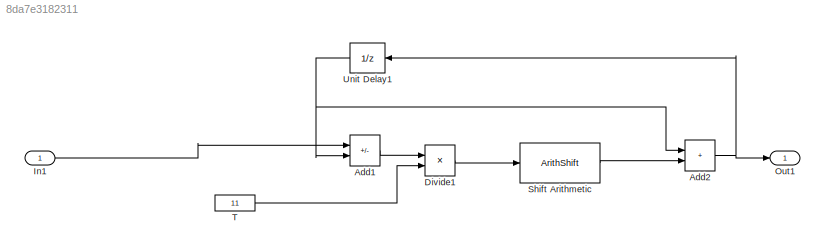
MODEL slx_8da7e3182311
KIND model
CONFIG AbsTol = auto
CONFIG EnableMultiTasking = off
CONFIG FixedStep = auto
CONFIG MaxStep = auto
CONFIG MinStep = auto
CONFIG RelTol = 1e-3
CONFIG SampleTimeConstraint = Unconstrained
CONFIG SolverName = FixedStepDiscrete
CONFIG StartTime = 0.0
CONFIG StopTime = 10
BLOCK [Sum] Add1
  IconShape = rectangular
  Inputs = +-
BLOCK [Sum] Add2
  IconShape = rectangular
BLOCK [Product] Divide1
  Inputs = **
  OutDataTypeStr = int32
  RndMeth = Simplest
BLOCK [Inport] In1
  OutDataTypeStr = int32
BLOCK [Outport] Out1
BLOCK [ArithShift] Shift Arithmetic
  BitShiftDirection = Right
  BitShiftNumber = 8
  InputPortMap = u0
BLOCK [Constant] T
  OutDataTypeStr = int32
  SampleTime = 0.1
  Value = 11
BLOCK [UnitDelay] Unit Delay1
  HasFrameUpgradeWarning = on
  SampleTime = -1
LINE Add1:1 -> Divide1:1
NET Add2:1 -> Out1:1, Unit Delay1:1
LINE Divide1:1 -> Shift Arithmetic:1
LINE In1:1 -> Add1:1
LINE Shift Arithmetic:1 -> Add2:2
LINE T:1 -> Divide1:2
NET Unit Delay1:1 -> Add1:2, Add2:1
note: NET lines group one-source signal fan-out (src -> all destinations, sorted); 1:1 wires keep LINE
